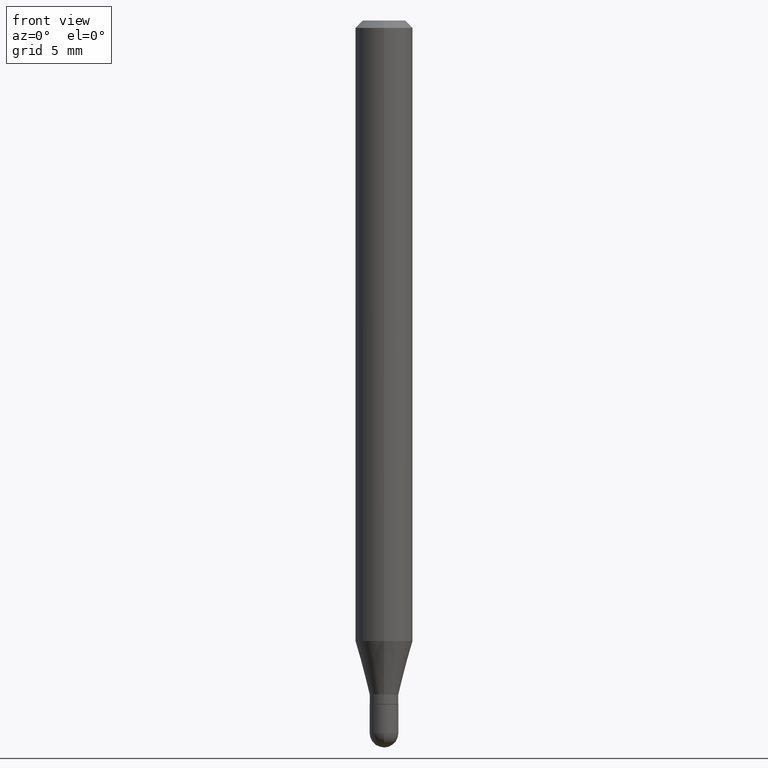
[diagram: clean part render]
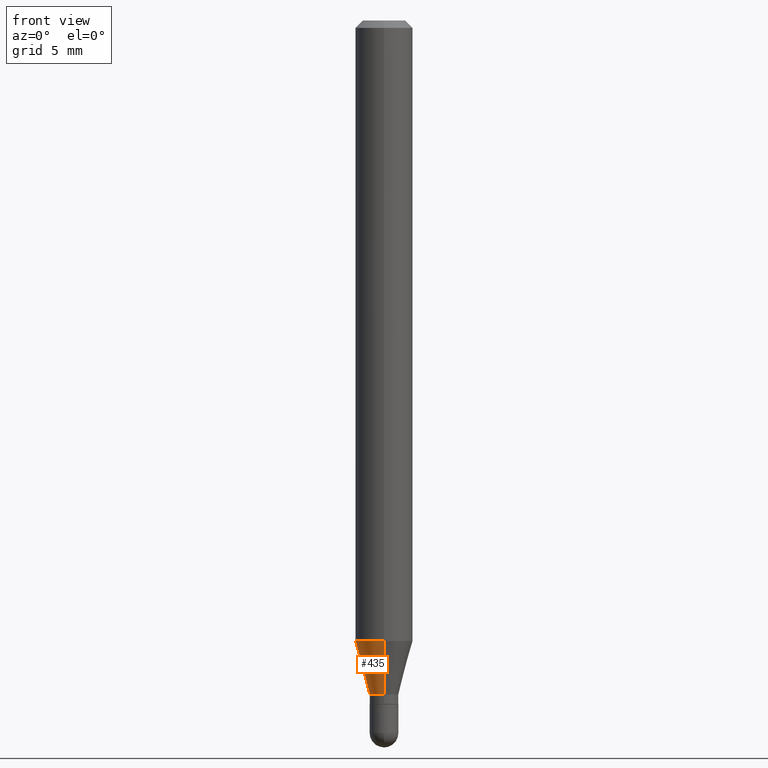
[diagram: same view with one face highlighted and labeled with its STEP entity id]
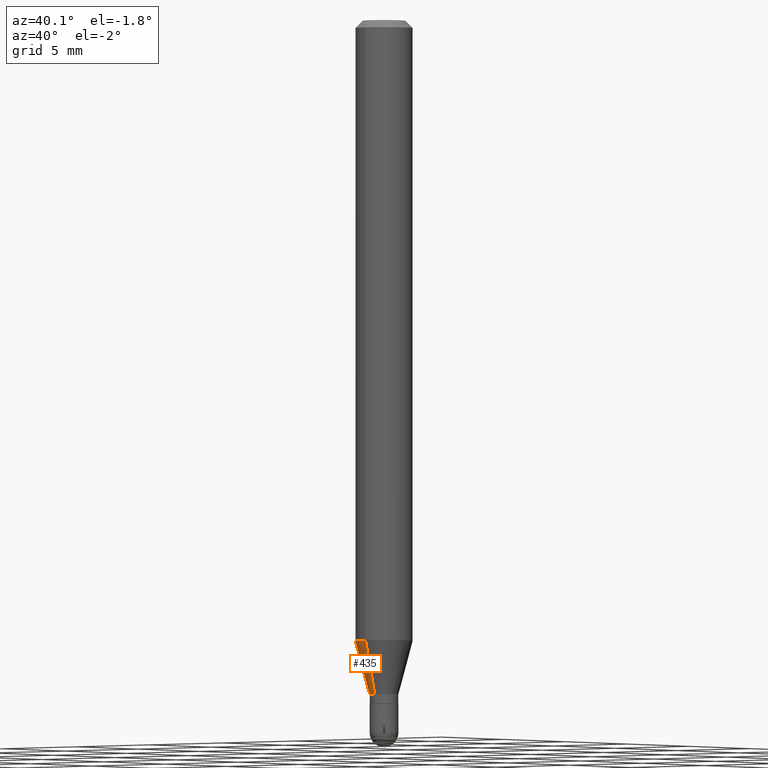
[diagram: same view with one face highlighted and labeled with its STEP entity id]
A machine part, front view. The second image highlights one B-rep face of the part: STEP entity #435.
A second angle (auxiliary view) of the same face is appended — the face is thin or edge-on in the first view.
In plain terms, the highlighted conical surface has half-angle 15 deg.
Its self-contained STEP definition (entity closure, byte-faithful):
#5 = AXIS2_PLACEMENT_3D ( 'NONE', #303, #57, #133 ) ;
#13 = CARTESIAN_POINT ( 'NONE',  ( -4.123439461173429220E-16, -0.05905000000000448085, -1.277004501176717932 ) ) ;
#15 = ORIENTED_EDGE ( 'NONE', *, *, #284, .F. ) ;
#20 = FACE_OUTER_BOUND ( 'NONE', #80, .T. ) ;
#30 = VERTEX_POINT ( 'NONE', #482 ) ;
#54 = VERTEX_POINT ( 'NONE', #313 ) ;
#56 = CIRCLE ( 'NONE', #436, 0.05904999999999999832 ) ;
#57 = DIRECTION ( 'NONE',  ( -2.445494840340628383E-29, 3.491444056450709535E-15, 1.000000000000000000 ) ) ;
#68 = AXIS2_PLACEMENT_3D ( 'NONE', #462, #496, #341 ) ;
#80 = EDGE_LOOP ( 'NONE', ( #351, #82, #488, #15 ) ) ;
#82 = ORIENTED_EDGE ( 'NONE', *, *, #392, .T. ) ;
#121 = VECTOR ( 'NONE', #415, 39.37007874015748143 ) ;
#131 = DIRECTION ( 'NONE',  ( -1.807323732225332900E-15, -0.2588190451025185190, 0.9659258262890689783 ) ) ;
#133 = DIRECTION ( 'NONE',  ( -6.982962677686265922E-15, -1.000000000000000000, 0.000000000000000000 ) ) ;
#143 = EDGE_CURVE ( 'NONE', #54, #339, #487, .T. ) ;
#156 = CARTESIAN_POINT ( 'NONE',  ( 3.122907918719422036E-29, -4.458589775694255755E-15, -1.277004501176718154 ) ) ;
#162 = CONICAL_SURFACE ( 'NONE', #68, 0.02954999999999992355, 0.2617993877991506291 ) ;
#166 = CARTESIAN_POINT ( 'NONE',  ( 4.195754854663701106E-16, 0.05904999999999551580, -1.277004501176718376 ) ) ;
#213 = CARTESIAN_POINT ( 'NONE',  ( 2.099653784171429334E-16, 0.02954999999999508020, -1.387099999999999778 ) ) ;
#249 = DIRECTION ( 'NONE',  ( -2.445494840340628383E-29, 3.491444056450709535E-15, 1.000000000000000000 ) ) ;
#278 = VECTOR ( 'NONE', #131, 39.37007874015748854 ) ;
#284 = EDGE_CURVE ( 'NONE', #339, #364, #56, .T. ) ;
#303 = CARTESIAN_POINT ( 'NONE',  ( 3.392145893036484860E-29, -4.842982050702778120E-15, -1.387099999999999778 ) ) ;
#313 = CARTESIAN_POINT ( 'NONE',  ( 3.147704319417567192E-16, 0.02954999999999508020, -1.387099999999999778 ) ) ;
#323 = DIRECTION ( 'NONE',  ( -6.982962677686265922E-15, -1.000000000000000000, 4.626330217890369336E-15 ) ) ;
#339 = VERTEX_POINT ( 'NONE', #166 ) ;
#341 = DIRECTION ( 'NONE',  ( -6.982962677686265922E-15, -1.000000000000000000, 0.000000000000000000 ) ) ;
#351 = ORIENTED_EDGE ( 'NONE', *, *, #143, .F. ) ;
#364 = VERTEX_POINT ( 'NONE', #13 ) ;
#386 = CIRCLE ( 'NONE', #5, 0.02954999999999992355 ) ;
#392 = EDGE_CURVE ( 'NONE', #54, #30, #386, .T. ) ;
#415 = DIRECTION ( 'NONE',  ( 1.839019923739602682E-15, 0.2588190451025252914, 0.9659258262890670910 ) ) ;
#425 = LINE ( 'NONE', #459, #278 ) ;
#435 = ADVANCED_FACE ( 'NONE', ( #20 ), #162, .T. ) ;
#436 = AXIS2_PLACEMENT_3D ( 'NONE', #156, #249, #323 ) ;
#459 = CARTESIAN_POINT ( 'NONE',  ( -2.063465471255947033E-16, -0.02955000000000476690, -1.387099999999999778 ) ) ;
#462 = CARTESIAN_POINT ( 'NONE',  ( 3.392145893036484860E-29, -4.842982050702778120E-15, -1.387099999999999778 ) ) ;
#466 = EDGE_CURVE ( 'NONE', #30, #364, #425, .T. ) ;
#482 = CARTESIAN_POINT ( 'NONE',  ( -2.063465471255947033E-16, -0.02955000000000476690, -1.387099999999999778 ) ) ;
#487 = LINE ( 'NONE', #213, #121 ) ;
#488 = ORIENTED_EDGE ( 'NONE', *, *, #466, .T. ) ;
#496 = DIRECTION ( 'NONE',  ( -2.445494840340628383E-29, 3.491444056450709535E-15, 1.000000000000000000 ) ) ;